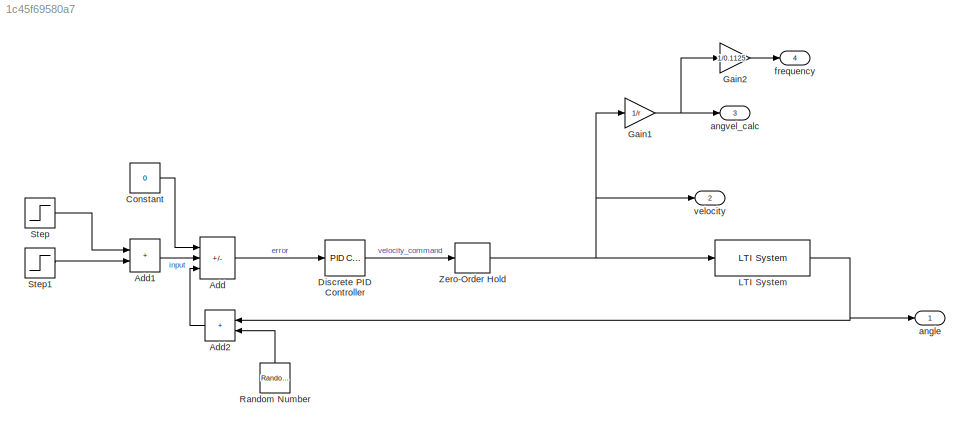
MODEL slx_1c45f69580a7
KIND model
CONFIG AbsTol = auto
CONFIG EnableMultiTasking = off
CONFIG FixedStep = 0.0001
CONFIG MaxStep = auto
CONFIG MinStep = auto
CONFIG RelTol = 1e-3
CONFIG SampleTimeConstraint = Unconstrained
CONFIG SolverName = ode4
CONFIG StartTime = 0.0
CONFIG StopTime = 10
BLOCK [Sum] Add
  IconShape = rectangular
  Inputs = ++-
BLOCK [Sum] Add1
  IconShape = rectangular
BLOCK [Sum] Add2
  IconShape = rectangular
  NameLocation = top
BLOCK [Constant] Constant
  Value = 0
BLOCK [Reference] Discrete PID Controller  REF=slpidlib/PID Controller
  LibrarySourceBlock = simulink/Discrete/Discrete PID Controller
  SourceBlock = slpidlib/PID Controller
  SourceType = PID 1dof
BLOCK [Gain] Gain1
  Gain = 1/r
BLOCK [Gain] Gain2
  Gain = 1/0.1125
BLOCK [Reference] LTI System  REF=cstblocks/LTI System
  SourceBlock = cstblocks/LTI System
  SourceType = LTI Block
BLOCK [RandomNumber] Random Number
  Commented = on
  NameLocation = right
  SampleTime = dt*10
  Variance = 0.0001
BLOCK [Step] Step
  After = initial_angle
  SampleTime = dt
BLOCK [Step] Step1
  After = -initial_angle
  SampleTime = dt
  Time = 1.01
BLOCK [ZeroOrderHold] Zero-Order Hold
  SampleTime = -1
BLOCK [Outport] angle
BLOCK [Outport] angvel_calc
  Port = 3
BLOCK [Outport] frequency
  Port = 4
BLOCK [Outport] velocity
  Port = 2
LINE Add1:1 -> Add:2
LINE Add2:1 -> Add:3
LINE Add:1 -> Discrete PID Controller:1
LINE Constant:1 -> Add:1
LINE Discrete PID Controller:1 -> Zero-Order Hold:1
NET Gain1:1 -> Gain2:1, angvel_calc:1
LINE Gain2:1 -> frequency:1
NET LTI System:1 -> Add2:1, angle:1
LINE Random Number:1 -> Add2:2
LINE Step1:1 -> Add1:2
LINE Step:1 -> Add1:1
NET Zero-Order Hold:1 -> Gain1:1, LTI System:1, velocity:1
note: NET lines group one-source signal fan-out (src -> all destinations, sorted); 1:1 wires keep LINE
